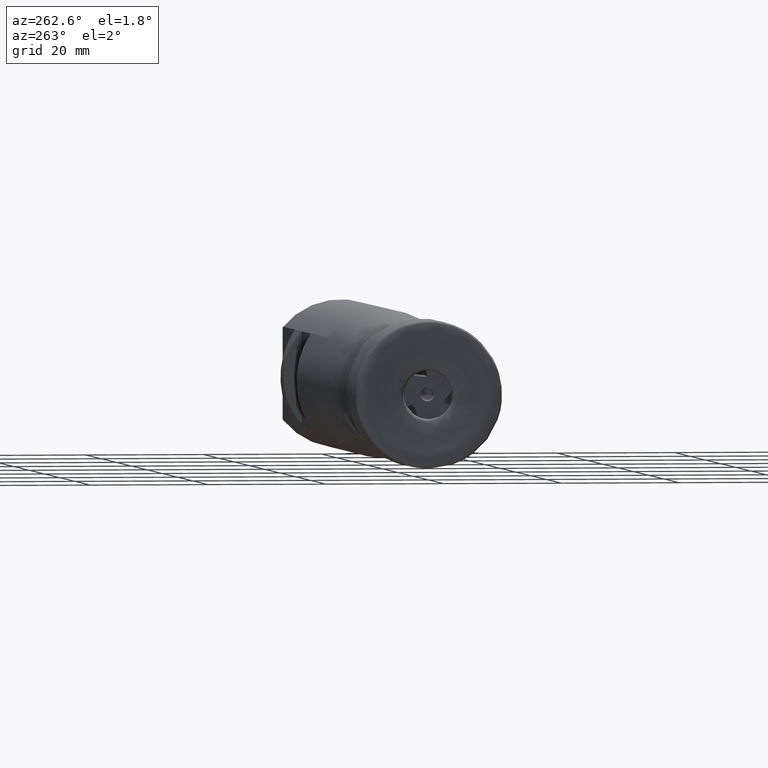
[diagram: clean part render]
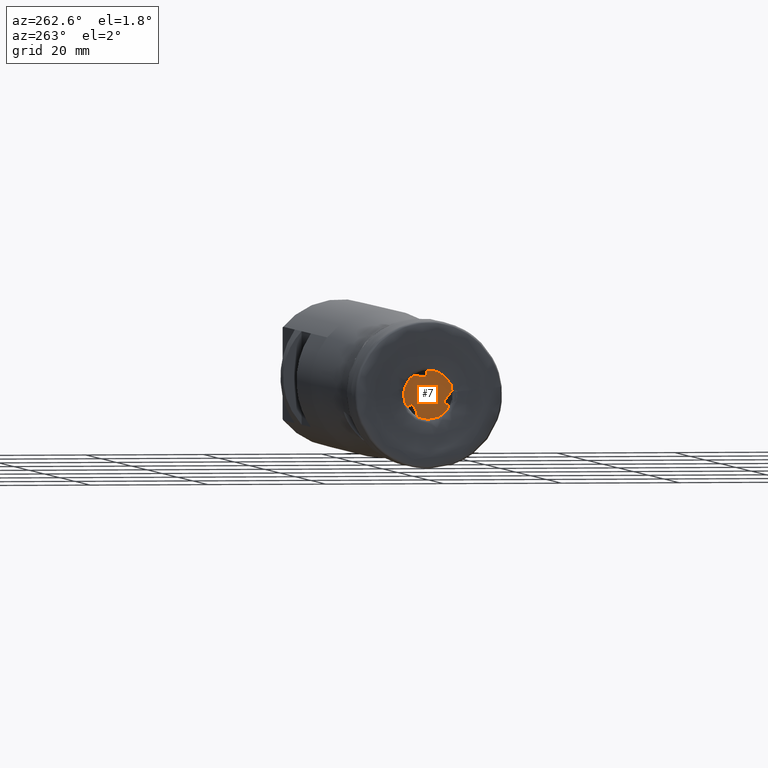
[diagram: same view with one face highlighted and labeled with its STEP entity id]
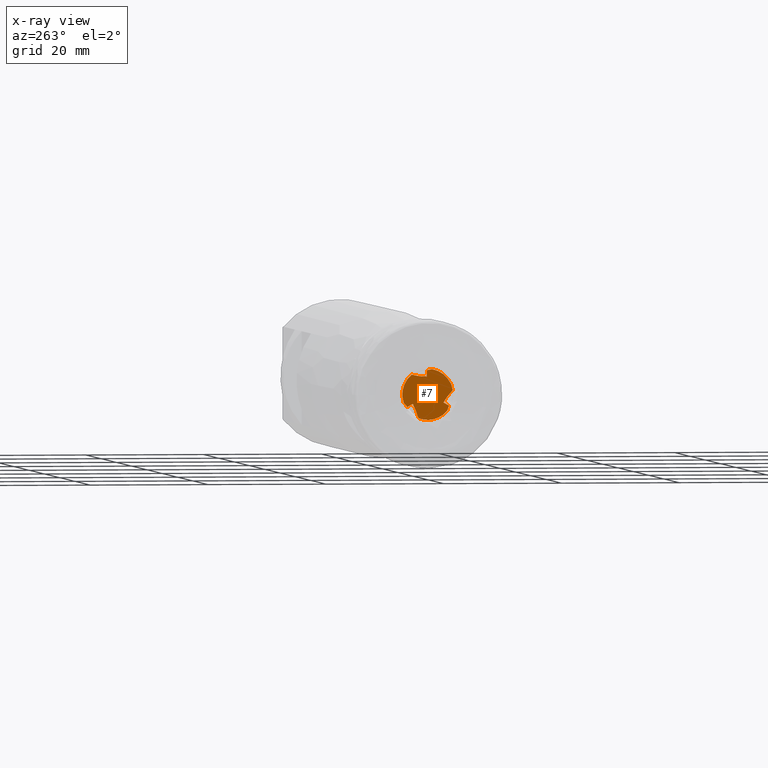
[diagram: x-ray of the same camera — body ghosted, the highlighted face saturated]
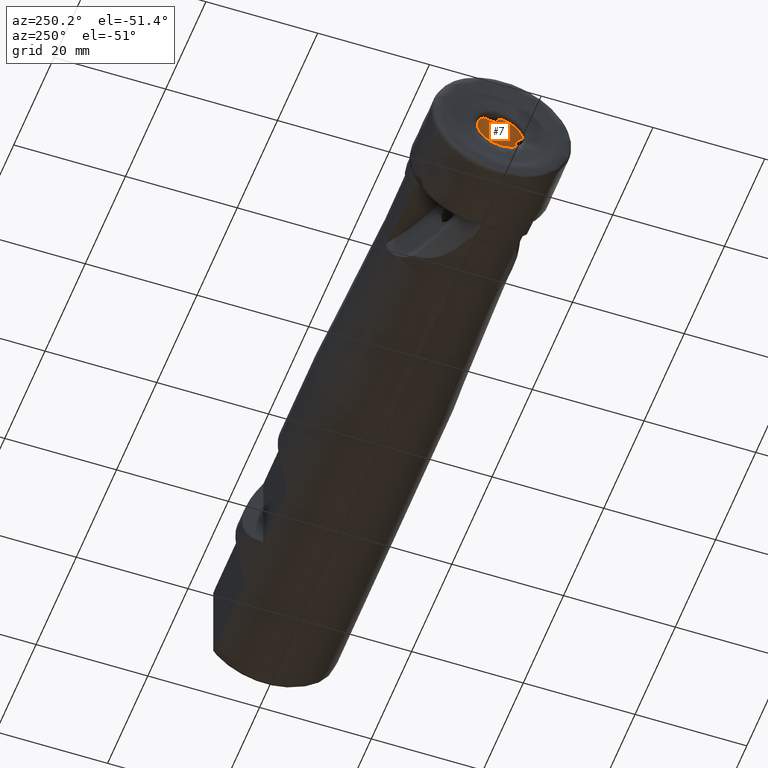
[diagram: same view with one face highlighted and labeled with its STEP entity id]
A machine part, auxiliary view. The second image highlights one B-rep face of the part: STEP entity #7.
The next image is the same camera in x-ray: the body ghosted, the highlighted face saturated — about 0% of this face is hidden behind the body in this view.
A second angle (auxiliary view) of the same face is appended — the face is thin or edge-on in the first view.
In plain terms, the highlighted planar face has unit normal (-1, 0, -0).
Its self-contained STEP definition (entity closure, byte-faithful):
#7 = ADVANCED_FACE ( 'NONE', ( #1785, #899 ), #1164, .T. ) ;
#58 = CARTESIAN_POINT ( 'NONE',  ( 0.9999999999999991100, 2.547969658174817500, -1.591337076551967900 ) ) ;
#92 = DIRECTION ( 'NONE',  ( -0.0000000000000000000, -0.6409323161901859800, -0.7675973984212579600 ) ) ;
#115 = EDGE_CURVE ( 'NONE', #945, #1242, #1367, .T. ) ;
#160 = VERTEX_POINT ( 'NONE', #4214 ) ;
#218 = CARTESIAN_POINT ( 'NONE',  ( 1.000000000000000200, 3.977631627342536300, -2.383811646579405300 ) ) ;
#226 = CARTESIAN_POINT ( 'NONE',  ( 1.000000000000004400, 0.0000000000000000000, 0.0000000000000000000 ) ) ;
#270 = ORIENTED_EDGE ( 'NONE', *, *, #557, .T. ) ;
#298 = VECTOR ( 'NONE', #2124, 1000.000000000000000 ) ;
#303 = CARTESIAN_POINT ( 'NONE',  ( 0.9999999999999991100, -2.676343494090833700, -1.364437089728261800 ) ) ;
#316 = DIRECTION ( 'NONE',  ( -1.000000000000000000, -0.0000000000000000000, -0.0000000000000000000 ) ) ;
#370 = CARTESIAN_POINT ( 'NONE',  ( 0.9999999999999991100, -2.676343494090833700, -1.364437089728261800 ) ) ;
#395 = CIRCLE ( 'NONE', #3438, 1.172649730810382700 ) ;
#453 = ORIENTED_EDGE ( 'NONE', *, *, #3576, .T. ) ;
#547 = DIRECTION ( 'NONE',  ( 0.0000000000000000000, 0.0000000000000000000, 1.000000000000000000 ) ) ;
#557 = EDGE_CURVE ( 'NONE', #2589, #3714, #1985, .T. ) ;
#561 = DIRECTION ( 'NONE',  ( -0.0000000000000000000, 0.0000000000000000000, 1.000000000000000000 ) ) ;
#580 = CARTESIAN_POINT ( 'NONE',  ( 0.9999999999999991100, 0.1565345654750487900, 2.999999999999999100 ) ) ;
#604 = CARTESIAN_POINT ( 'NONE',  ( 1.000000000000000200, 0.1565345654750494300, -4.616487990406620500E-016 ) ) ;
#657 = AXIS2_PLACEMENT_3D ( 'NONE', #226, #2508, #547 ) ;
#659 = EDGE_CURVE ( 'NONE', #1468, #945, #1887, .T. ) ;
#676 = VERTEX_POINT ( 'NONE', #988 ) ;
#723 = CARTESIAN_POINT ( 'NONE',  ( 1.000000000000000200, -3.241146374669213500, -2.963739859409696600 ) ) ;
#782 = CARTESIAN_POINT ( 'NONE',  ( 1.000000000000000200, 5.870927461086251900, 2.980797664132156700 ) ) ;
#850 = EDGE_CURVE ( 'NONE', #676, #676, #395, .T. ) ;
#862 = CARTESIAN_POINT ( 'NONE',  ( 1.000000000000004400, 0.0000000000000000000, 0.0000000000000000000 ) ) ;
#899 = FACE_BOUND ( 'NONE', #2311, .T. ) ;
#905 = DIRECTION ( 'NONE',  ( -1.000000000000000000, 0.0000000000000000000, -0.0000000000000000000 ) ) ;
#926 = VERTEX_POINT ( 'NONE', #3609 ) ;
#941 = CARTESIAN_POINT ( 'NONE',  ( 0.9999999999999991100, -3.642907891240867400, 0.08426695469092358700 ) ) ;
#945 = VERTEX_POINT ( 'NONE', #3009 ) ;
#969 = CIRCLE ( 'NONE', #3942, 4.315746902243302200 ) ;
#988 = CARTESIAN_POINT ( 'NONE',  ( 1.000000000000000200, 0.0000000000000000000, 1.172649730810382700 ) ) ;
#1053 = VERTEX_POINT ( 'NONE', #58 ) ;
#1105 = VERTEX_POINT ( 'NONE', #2257 ) ;
#1107 = VERTEX_POINT ( 'NONE', #3648 ) ;
#1110 = VECTOR ( 'NONE', #1588, 1000.000000000000000 ) ;
#1164 = PLANE ( 'NONE',  #1994 ) ;
#1191 = DIRECTION ( 'NONE',  ( 0.0000000000000000000, 0.0000000000000000000, 1.000000000000000000 ) ) ;
#1242 = VERTEX_POINT ( 'NONE', #370 ) ;
#1325 = CARTESIAN_POINT ( 'NONE',  ( 1.000000000000004400, 0.0000000000000000000, 0.0000000000000000000 ) ) ;
#1338 =( BOUNDED_CURVE ( )  B_SPLINE_CURVE ( 3, ( #3475, #3130, #3808, #1840 ),
 .UNSPECIFIED., .F., .F. ) 
 B_SPLINE_CURVE_WITH_KNOTS ( ( 4, 4 ),
 ( 4.712388980384689700, 4.972446775437445500 ),
 .UNSPECIFIED. ) 
 CURVE ( )  GEOMETRIC_REPRESENTATION_ITEM ( )  RATIONAL_B_SPLINE_CURVE ( ( 1.000000000000000000, 0.9943720981298149700, 0.9943720981298149700, 1.000000000000000000 ) ) 
 REPRESENTATION_ITEM ( '' )  );
#1348 = EDGE_CURVE ( 'NONE', #1105, #2589, #3256, .T. ) ;
#1367 = LINE ( 'NONE', #1830, #298 ) ;
#1392 = DIRECTION ( 'NONE',  ( -0.0000000000000000000, -0.3278548437524737000, 0.9447281097903464900 ) ) ;
#1468 = VERTEX_POINT ( 'NONE', #2540 ) ;
#1584 = AXIS2_PLACEMENT_3D ( 'NONE', #862, #3163, #1191 ) ;
#1588 = DIRECTION ( 'NONE',  ( 0.0000000000000000000, 8.977188177897944000E-017, -1.000000000000000000 ) ) ;
#1591 = CARTESIAN_POINT ( 'NONE',  ( 1.000000000000000200, 0.0000000000000000000, 0.0000000000000000000 ) ) ;
#1652 = DIRECTION ( 'NONE',  ( 0.0000000000000000000, 1.776356839400250500E-015, 1.000000000000000000 ) ) ;
#1675 = EDGE_CURVE ( 'NONE', #1107, #1053, #3621, .T. ) ;
#1785 = FACE_OUTER_BOUND ( 'NONE', #3571, .T. ) ;
#1828 = CARTESIAN_POINT ( 'NONE',  ( 1.000000000002676700, 2.737720798598841700, 3.336248814635442500 ) ) ;
#1830 = CARTESIAN_POINT ( 'NONE',  ( 1.000000000000000200, 3.895982717262455300, 2.430097217598631500 ) ) ;
#1840 = CARTESIAN_POINT ( 'NONE',  ( 1.000000000002676700, 1.590675580491447200, -4.011910083970637900 ) ) ;
#1887 = LINE ( 'NONE', #723, #3630 ) ;
#1976 =( BOUNDED_CURVE ( )  B_SPLINE_CURVE ( 3, ( #303, #3549, #941, #3248 ),
 .UNSPECIFIED., .F., .F. ) 
 B_SPLINE_CURVE_WITH_KNOTS ( ( 4, 4 ),
 ( 4.712388980384689700, 4.972446775437445500 ),
 .UNSPECIFIED. ) 
 CURVE ( )  GEOMETRIC_REPRESENTATION_ITEM ( )  RATIONAL_B_SPLINE_CURVE ( ( 1.000000000000000000, 0.9943720981298149700, 0.9943720981298149700, 1.000000000000000000 ) ) 
 REPRESENTATION_ITEM ( '' )  );
#1985 = LINE ( 'NONE', #604, #1110 ) ;
#1994 = AXIS2_PLACEMENT_3D ( 'NONE', #4167, #905, #561 ) ;
#2042 = CARTESIAN_POINT ( 'NONE',  ( 1.000000000000000200, 5.273039811764553200, 0.02167636785729066100 ) ) ;
#2124 = DIRECTION ( 'NONE',  ( 0.0000000000000000000, 0.8660254037844363800, 0.5000000000000041100 ) ) ;
#2226 = ORIENTED_EDGE ( 'NONE', *, *, #4229, .F. ) ;
#2227 = CARTESIAN_POINT ( 'NONE',  ( 1.000000000000000200, 0.1565345654750496800, 4.077221705174121500 ) ) ;
#2257 = CARTESIAN_POINT ( 'NONE',  ( 1.000000000000000200, -0.7470648961192070100, 4.250595883544918700 ) ) ;
#2270 = VECTOR ( 'NONE', #4082, 1000.000000000000000 ) ;
#2311 = EDGE_LOOP ( 'NONE', ( #2635 ) ) ;
#2358 = CARTESIAN_POINT ( 'NONE',  ( 1.000000000002672100, -4.258136626119436700, 0.7028113527378718800 ) ) ;
#2480 = CIRCLE ( 'NONE', #657, 4.315746902243302200 ) ;
#2508 = DIRECTION ( 'NONE',  ( 1.000000000000000000, 0.0000000000000000000, 0.0000000000000000000 ) ) ;
#2540 = CARTESIAN_POINT ( 'NONE',  ( 1.000000000000000200, -3.307591568311843300, -2.772275120087291300 ) ) ;
#2572 = CIRCLE ( 'NONE', #1584, 4.315746902243302200 ) ;
#2589 = VERTEX_POINT ( 'NONE', #2227 ) ;
#2605 = ORIENTED_EDGE ( 'NONE', *, *, #115, .T. ) ;
#2635 = ORIENTED_EDGE ( 'NONE', *, *, #850, .F. ) ;
#2641 = VECTOR ( 'NONE', #2825, 1000.000000000000100 ) ;
#2644 = EDGE_CURVE ( 'NONE', #1242, #3309, #1976, .T. ) ;
#2709 = ORIENTED_EDGE ( 'NONE', *, *, #1348, .T. ) ;
#2788 = EDGE_CURVE ( 'NONE', #3714, #160, #3181, .T. ) ;
#2822 = ORIENTED_EDGE ( 'NONE', *, *, #2644, .T. ) ;
#2823 = CARTESIAN_POINT ( 'NONE',  ( 1.000000000002676700, 1.590675580491447200, -4.011910083970637900 ) ) ;
#2825 = DIRECTION ( 'NONE',  ( 0.0000000000000000000, -0.8746197071394001800, 0.4848096202463290100 ) ) ;
#2861 = EDGE_CURVE ( 'NONE', #1105, #3309, #2480, .T. ) ;
#2866 = ORIENTED_EDGE ( 'NONE', *, *, #3293, .T. ) ;
#2875 = VERTEX_POINT ( 'NONE', #2823 ) ;
#2999 = ORIENTED_EDGE ( 'NONE', *, *, #659, .T. ) ;
#3009 = CARTESIAN_POINT ( 'NONE',  ( 1.000000000000000200, -3.609244856279609300, -1.903047942315329300 ) ) ;
#3065 = ORIENTED_EDGE ( 'NONE', *, *, #2861, .F. ) ;
#3075 = ORIENTED_EDGE ( 'NONE', *, *, #2788, .T. ) ;
#3124 = CARTESIAN_POINT ( 'NONE',  ( 0.9999999999999991100, 0.1565345654750487900, 2.999999999999999100 ) ) ;
#3130 = CARTESIAN_POINT ( 'NONE',  ( 0.9999999999999991100, 2.124909431643148500, -2.354557928571069200 ) ) ;
#3160 = ORIENTED_EDGE ( 'NONE', *, *, #1675, .T. ) ;
#3163 = DIRECTION ( 'NONE',  ( 1.000000000000000000, 0.0000000000000000000, 0.0000000000000000000 ) ) ;
#3181 =( BOUNDED_CURVE ( )  B_SPLINE_CURVE ( 3, ( #3124, #3468, #3802, #1828 ),
 .UNSPECIFIED., .F., .F. ) 
 B_SPLINE_CURVE_WITH_KNOTS ( ( 4, 4 ),
 ( 4.712388980384689700, 4.972446775437445500 ),
 .UNSPECIFIED. ) 
 CURVE ( )  GEOMETRIC_REPRESENTATION_ITEM ( )  RATIONAL_B_SPLINE_CURVE ( ( 1.000000000000000000, 0.9943720981298149700, 0.9943720981298149700, 1.000000000000000000 ) ) 
 REPRESENTATION_ITEM ( '' )  );
#3248 = CARTESIAN_POINT ( 'NONE',  ( 1.000000000002672100, -4.258136626119436700, 0.7028113527378718800 ) ) ;
#3256 = LINE ( 'NONE', #782, #2270 ) ;
#3293 = EDGE_CURVE ( 'NONE', #926, #1107, #3510, .T. ) ;
#3294 = VECTOR ( 'NONE', #92, 1000.000000000000100 ) ;
#3309 = VERTEX_POINT ( 'NONE', #2358 ) ;
#3438 = AXIS2_PLACEMENT_3D ( 'NONE', #1591, #316, #4240 ) ;
#3468 = CARTESIAN_POINT ( 'NONE',  ( 0.9999999999999991100, 1.029166231316825100, 3.000000000000000400 ) ) ;
#3475 = CARTESIAN_POINT ( 'NONE',  ( 0.9999999999999991100, 2.547969658174817500, -1.591337076551967900 ) ) ;
#3510 = LINE ( 'NONE', #2042, #3294 ) ;
#3549 = CARTESIAN_POINT ( 'NONE',  ( 0.9999999999999991100, -3.112659327011723800, -0.6087158989625526300 ) ) ;
#3571 = EDGE_LOOP ( 'NONE', ( #2226, #2999, #2605, #2822, #3065, #2709, #270, #3075, #4076, #2866, #3160, #453 ) ) ;
#3576 = EDGE_CURVE ( 'NONE', #1053, #2875, #1338, .T. ) ;
#3602 = EDGE_CURVE ( 'NONE', #926, #160, #2572, .T. ) ;
#3609 = CARTESIAN_POINT ( 'NONE',  ( 1.000000000000004400, 4.079839175420922900, -1.407332095464104200 ) ) ;
#3621 = LINE ( 'NONE', #218, #2641 ) ;
#3630 = VECTOR ( 'NONE', #1392, 1000.000000000000200 ) ;
#3634 = DIRECTION ( 'NONE',  ( 1.000000000000000000, 0.0000000000000000000, 0.0000000000000000000 ) ) ;
#3648 = CARTESIAN_POINT ( 'NONE',  ( 1.000000000000000200, 3.490128990478414700, -2.113584522358535900 ) ) ;
#3714 = VERTEX_POINT ( 'NONE', #580 ) ;
#3802 = CARTESIAN_POINT ( 'NONE',  ( 0.9999999999999991100, 1.894431269082340400, 3.112717300115920100 ) ) ;
#3808 = CARTESIAN_POINT ( 'NONE',  ( 0.9999999999999991100, 1.804005389288551900, -3.165982213963897300 ) ) ;
#3942 = AXIS2_PLACEMENT_3D ( 'NONE', #1325, #3634, #1652 ) ;
#4076 = ORIENTED_EDGE ( 'NONE', *, *, #3602, .F. ) ;
#4082 = DIRECTION ( 'NONE',  ( -0.0000000000000000000, 0.9820859646239302700, -0.1884334314517577800 ) ) ;
#4167 = CARTESIAN_POINT ( 'NONE',  ( 1.000000000000000200, 5.299000000000000400, 0.0000000000000000000 ) ) ;
#4214 = CARTESIAN_POINT ( 'NONE',  ( 1.000000000002676700, 2.737720798598841700, 3.336248814635442500 ) ) ;
#4229 = EDGE_CURVE ( 'NONE', #1468, #2875, #969, .T. ) ;
#4240 = DIRECTION ( 'NONE',  ( 0.0000000000000000000, 0.0000000000000000000, 1.000000000000000000 ) ) ;